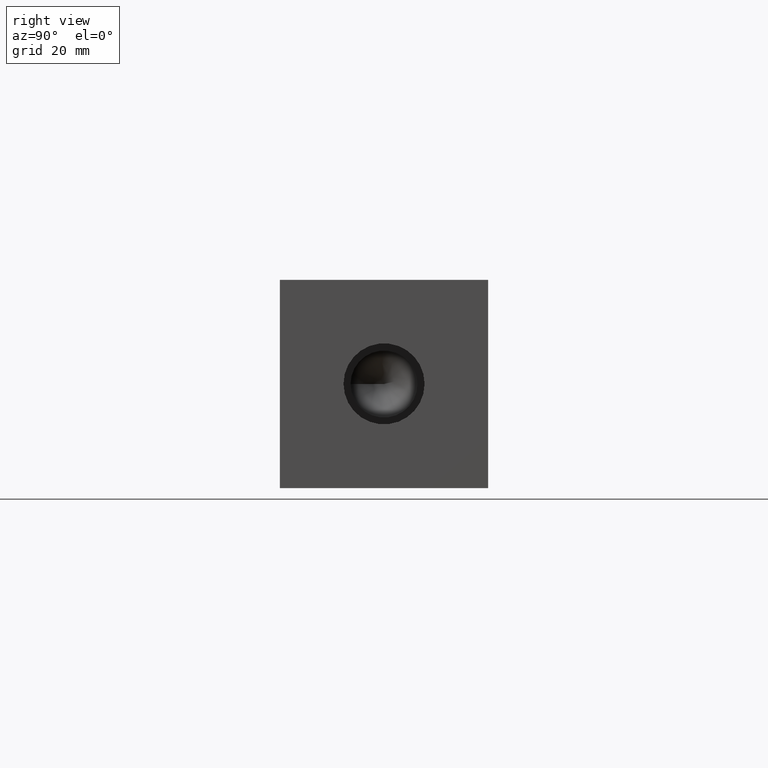
[diagram: clean part render]
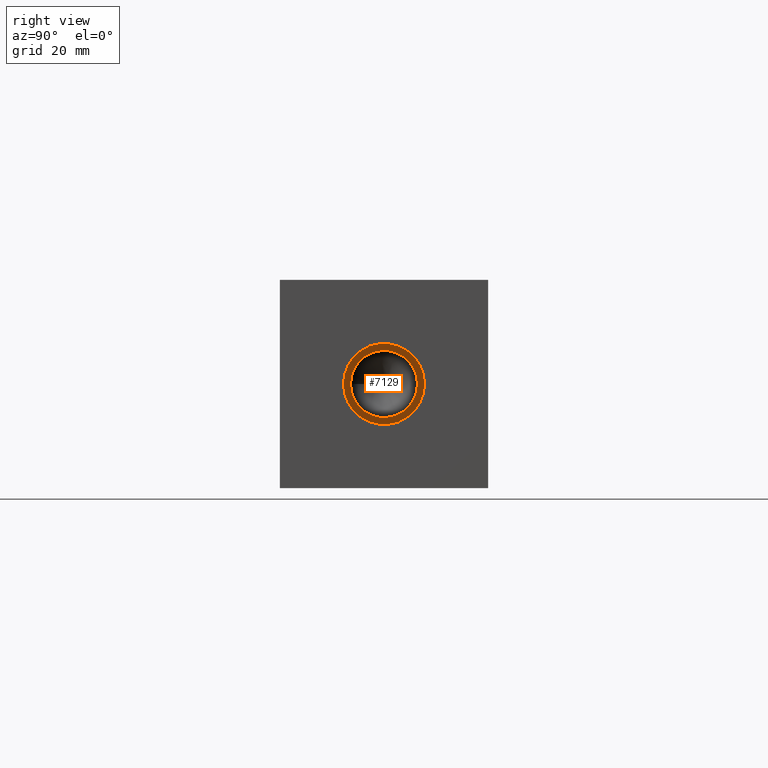
[diagram: same view with one face highlighted and labeled with its STEP entity id]
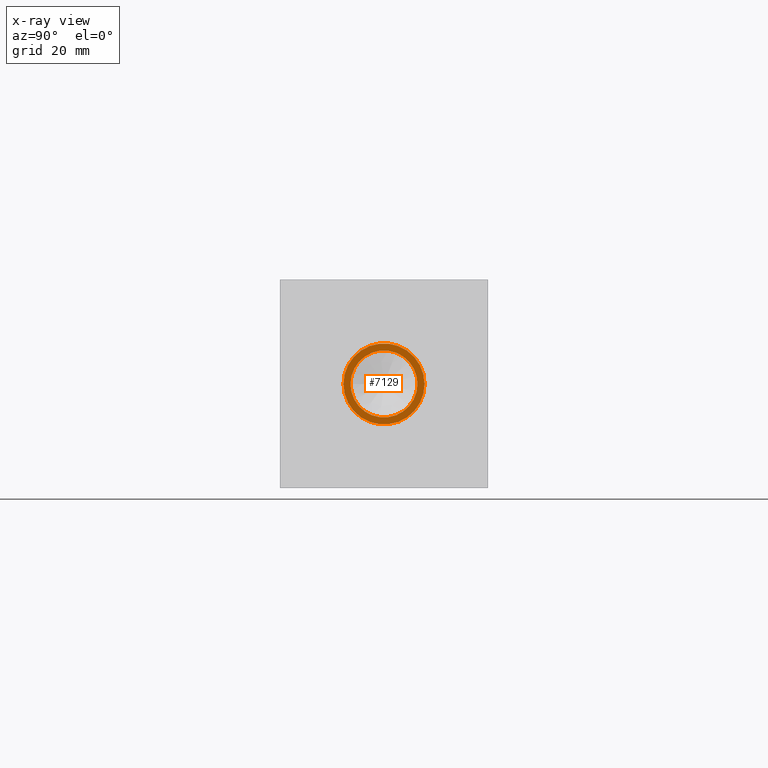
[diagram: x-ray of the same camera — body ghosted, the highlighted face saturated]
A machine part, right view. The second image highlights one B-rep face of the part: STEP entity #7129.
The next image is the same camera in x-ray: the body ghosted, the highlighted face saturated — about 0% of this face is hidden behind the body in this view.
In plain terms, the highlighted planar face has unit normal (1, 0, 0).
Its self-contained STEP definition (entity closure, byte-faithful):
#87=CIRCLE('',#7447,8.6487);
#88=CIRCLE('',#7448,8.6487);
#89=CIRCLE('',#7449,7.1501);
#432=FACE_BOUND('',#1175,.T.);
#776=FACE_OUTER_BOUND('',#1174,.T.);
#1174=EDGE_LOOP('',(#6082,#6083));
#1175=EDGE_LOOP('',(#6084));
#3276=VERTEX_POINT('',#11967);
#3277=VERTEX_POINT('',#11968);
#3278=VERTEX_POINT('',#11971);
#4228=EDGE_CURVE('',#3276,#3277,#87,.T.);
#4229=EDGE_CURVE('',#3277,#3276,#88,.T.);
#4230=EDGE_CURVE('',#3278,#3278,#89,.T.);
#6082=ORIENTED_EDGE('',*,*,#4228,.T.);
#6083=ORIENTED_EDGE('',*,*,#4229,.T.);
#6084=ORIENTED_EDGE('',*,*,#4230,.F.);
#6484=PLANE('',#7446);
#7129=ADVANCED_FACE('',(#776,#432),#6484,.T.);
#7446=AXIS2_PLACEMENT_3D('',#11966,#8754,#8755);
#7447=AXIS2_PLACEMENT_3D('',#11969,#8756,#8757);
#7448=AXIS2_PLACEMENT_3D('',#11970,#8758,#8759);
#7449=AXIS2_PLACEMENT_3D('',#11972,#8760,#8761);
#8754=DIRECTION('center_axis',(1.,0.,0.));
#8755=DIRECTION('ref_axis',(0.,1.,0.));
#8756=DIRECTION('center_axis',(1.,0.,0.));
#8757=DIRECTION('ref_axis',(0.,1.,0.));
#8758=DIRECTION('center_axis',(1.,0.,0.));
#8759=DIRECTION('ref_axis',(0.,1.,0.));
#8760=DIRECTION('center_axis',(1.,0.,0.));
#8761=DIRECTION('ref_axis',(0.,1.,0.));
#11966=CARTESIAN_POINT('Origin',(131.1402,22.225,22.225));
#11967=CARTESIAN_POINT('',(131.1402,30.8737,22.225));
#11968=CARTESIAN_POINT('',(131.1402,13.5763,22.225));
#11969=CARTESIAN_POINT('Origin',(131.1402,22.225,22.225));
#11970=CARTESIAN_POINT('Origin',(131.1402,22.225,22.225));
#11971=CARTESIAN_POINT('',(131.1402,15.0749,22.225));
#11972=CARTESIAN_POINT('Origin',(131.1402,22.225,22.225));